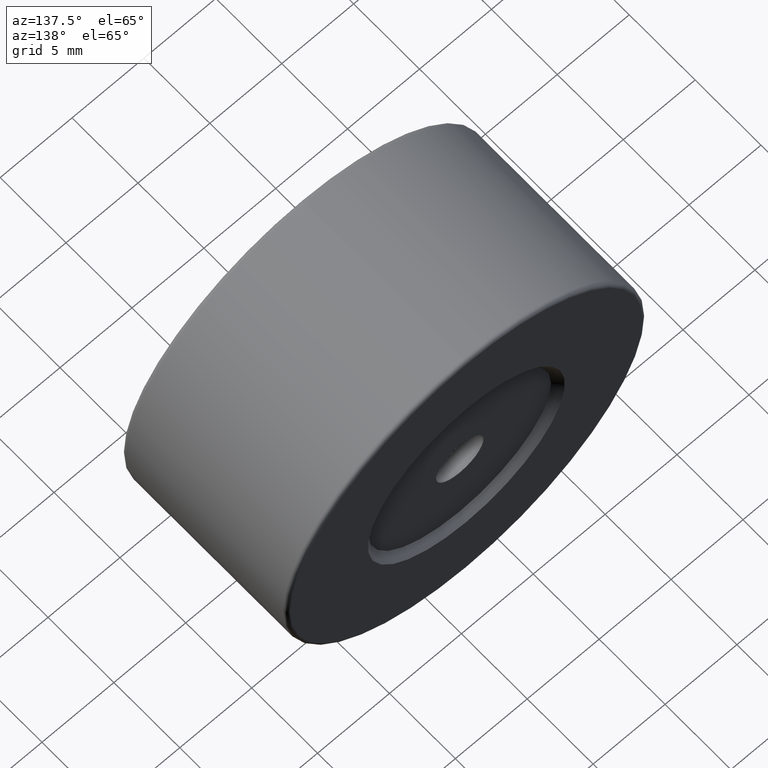
[diagram: clean part render]
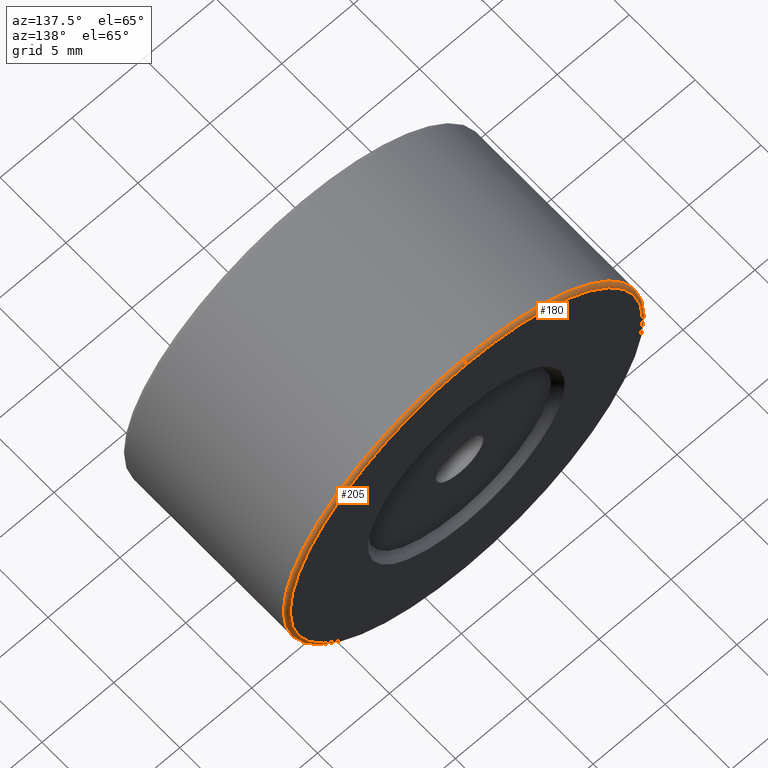
[diagram: same view with one multi-face feature highlighted, each face labeled with its STEP entity id]
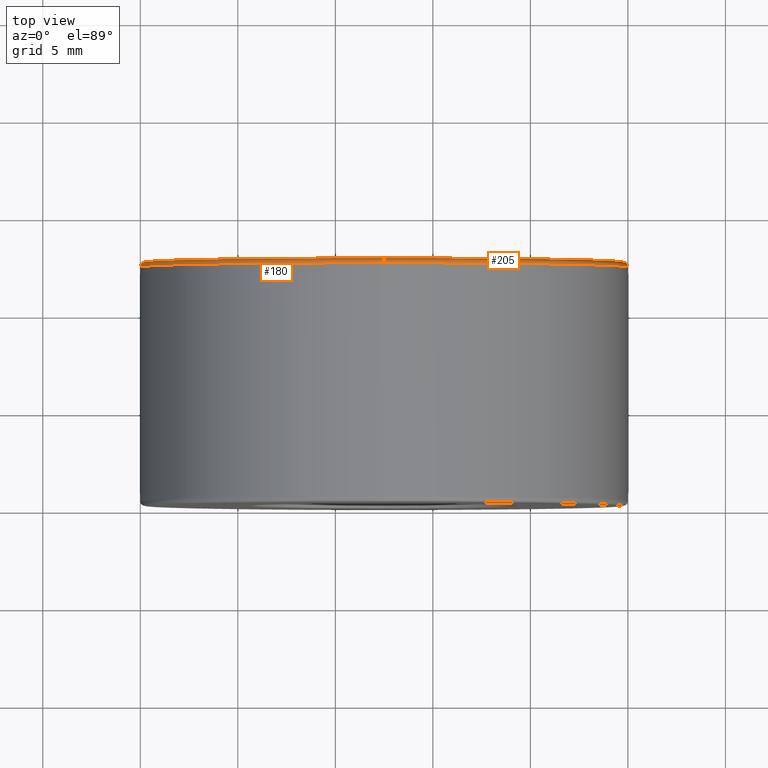
[diagram: same view with one multi-face feature highlighted, each face labeled with its STEP entity id]
A machine part, auxiliary view. The highlighted faces form ONE feature: a constant-radius fillet chain: 2 tangent blend faces with common blend radius 0.25 mm. The faces share edges in the B-rep.
A second angle (top view) of the same feature is appended — it is thin or edge-on in the first view.
Their STEP definitions:
[1] entity #205 (Torus):
#14 = DIRECTION ( 'NONE',  ( 0.0000000000000000000, 0.0000000000000000000, 1.000000000000000000 ) ) ;
#15 = EDGE_CURVE ( 'NONE', #195, #49, #157, .T. ) ;
#41 = DIRECTION ( 'NONE',  ( 0.0000000000000000000, 0.0000000000000000000, 1.000000000000000000 ) ) ;
#45 = CARTESIAN_POINT ( 'NONE',  ( -22.50520183104453409, 7.648252184769388506, 50.00000000000000000 ) ) ;
#49 = VERTEX_POINT ( 'NONE', #356 ) ;
#62 = TOROIDAL_SURFACE ( 'NONE', #470, 12.25000000000000000, 0.2500000000000000000 ) ;
#98 = DIRECTION ( 'NONE',  ( -1.000000000000000000, 0.0000000000000000000, 0.0000000000000000000 ) ) ;
#142 = CARTESIAN_POINT ( 'NONE',  ( -22.50520183104453409, 7.398252184769388506, 37.50000000000000711 ) ) ;
#146 = CARTESIAN_POINT ( 'NONE',  ( -22.50520183104453409, 7.398252184769388506, 50.00000000000000000 ) ) ;
#157 = CIRCLE ( 'NONE', #533, 12.24999999999999645 ) ;
#171 = AXIS2_PLACEMENT_3D ( 'NONE', #522, #295, #309 ) ;
#186 = CIRCLE ( 'NONE', #395, 12.49999999999999645 ) ;
#195 = VERTEX_POINT ( 'NONE', #345 ) ;
#204 = EDGE_CURVE ( 'NONE', #487, #49, #322, .T. ) ;
#205 = ADVANCED_FACE ( 'NONE', ( #441 ), #62, .T. ) ;
#274 = AXIS2_PLACEMENT_3D ( 'NONE', #368, #98, #14 ) ;
#295 = DIRECTION ( 'NONE',  ( 1.000000000000000000, -0.0000000000000000000, 1.224646799147353207E-16 ) ) ;
#304 = CIRCLE ( 'NONE', #274, 0.2500000000000002220 ) ;
#308 = CARTESIAN_POINT ( 'NONE',  ( -22.50520183104453409, 7.398252184769388506, 50.00000000000000000 ) ) ;
#309 = DIRECTION ( 'NONE',  ( 0.0000000000000000000, 0.0000000000000000000, -1.000000000000000000 ) ) ;
#322 = CIRCLE ( 'NONE', #171, 0.2500000000000002220 ) ;
#323 = DIRECTION ( 'NONE',  ( 0.0000000000000000000, 0.0000000000000000000, 1.000000000000000000 ) ) ;
#328 = DIRECTION ( 'NONE',  ( -0.0000000000000000000, -1.000000000000000000, -0.0000000000000000000 ) ) ;
#330 = CARTESIAN_POINT ( 'NONE',  ( -22.50520183104453409, 7.398252184769388506, 62.50000000000000000 ) ) ;
#345 = CARTESIAN_POINT ( 'NONE',  ( -22.50520183104453409, 7.648252184769388506, 62.25000000000000000 ) ) ;
#356 = CARTESIAN_POINT ( 'NONE',  ( -22.50520183104453409, 7.648252184769388506, 37.75000000000000711 ) ) ;
#368 = CARTESIAN_POINT ( 'NONE',  ( -22.50520183104453409, 7.398252184769388506, 62.25000000000000000 ) ) ;
#382 = ORIENTED_EDGE ( 'NONE', *, *, #204, .T. ) ;
#383 = EDGE_CURVE ( 'NONE', #393, #195, #304, .T. ) ;
#387 = EDGE_CURVE ( 'NONE', #487, #393, #186, .T. ) ;
#393 = VERTEX_POINT ( 'NONE', #330 ) ;
#395 = AXIS2_PLACEMENT_3D ( 'NONE', #146, #328, #323 ) ;
#408 = DIRECTION ( 'NONE',  ( 0.0000000000000000000, 0.0000000000000000000, 1.000000000000000000 ) ) ;
#427 = ORIENTED_EDGE ( 'NONE', *, *, #383, .F. ) ;
#441 = FACE_OUTER_BOUND ( 'NONE', #510, .T. ) ;
#449 = DIRECTION ( 'NONE',  ( 0.0000000000000000000, 1.000000000000000000, 0.0000000000000000000 ) ) ;
#470 = AXIS2_PLACEMENT_3D ( 'NONE', #308, #449, #41 ) ;
#487 = VERTEX_POINT ( 'NONE', #142 ) ;
#510 = EDGE_LOOP ( 'NONE', ( #561, #382, #512, #427 ) ) ;
#512 = ORIENTED_EDGE ( 'NONE', *, *, #15, .F. ) ;
#522 = CARTESIAN_POINT ( 'NONE',  ( -22.50520183104453409, 7.398252184769388506, 37.75000000000000711 ) ) ;
#533 = AXIS2_PLACEMENT_3D ( 'NONE', #45, #539, #408 ) ;
#539 = DIRECTION ( 'NONE',  ( 0.0000000000000000000, 1.000000000000000000, 0.0000000000000000000 ) ) ;
#561 = ORIENTED_EDGE ( 'NONE', *, *, #387, .F. ) ;
[2] entity #180 (Torus):
#14 = DIRECTION ( 'NONE',  ( 0.0000000000000000000, 0.0000000000000000000, 1.000000000000000000 ) ) ;
#49 = VERTEX_POINT ( 'NONE', #356 ) ;
#98 = DIRECTION ( 'NONE',  ( -1.000000000000000000, 0.0000000000000000000, 0.0000000000000000000 ) ) ;
#115 = CARTESIAN_POINT ( 'NONE',  ( -22.50520183104453409, 7.398252184769388506, 50.00000000000000000 ) ) ;
#122 = FACE_OUTER_BOUND ( 'NONE', #137, .T. ) ;
#123 = AXIS2_PLACEMENT_3D ( 'NONE', #225, #318, #498 ) ;
#128 = CIRCLE ( 'NONE', #208, 12.24999999999999645 ) ;
#129 = EDGE_CURVE ( 'NONE', #49, #195, #128, .T. ) ;
#137 = EDGE_LOOP ( 'NONE', ( #242, #162, #389, #463 ) ) ;
#142 = CARTESIAN_POINT ( 'NONE',  ( -22.50520183104453409, 7.398252184769388506, 37.50000000000000711 ) ) ;
#147 = TOROIDAL_SURFACE ( 'NONE', #350, 12.25000000000000000, 0.2500000000000000000 ) ;
#162 = ORIENTED_EDGE ( 'NONE', *, *, #303, .F. ) ;
#163 = DIRECTION ( 'NONE',  ( 0.0000000000000000000, 1.000000000000000000, 0.0000000000000000000 ) ) ;
#171 = AXIS2_PLACEMENT_3D ( 'NONE', #522, #295, #309 ) ;
#180 = ADVANCED_FACE ( 'NONE', ( #122 ), #147, .T. ) ;
#195 = VERTEX_POINT ( 'NONE', #345 ) ;
#204 = EDGE_CURVE ( 'NONE', #487, #49, #322, .T. ) ;
#208 = AXIS2_PLACEMENT_3D ( 'NONE', #390, #480, #220 ) ;
#220 = DIRECTION ( 'NONE',  ( 0.0000000000000000000, 0.0000000000000000000, 1.000000000000000000 ) ) ;
#225 = CARTESIAN_POINT ( 'NONE',  ( -22.50520183104453409, 7.398252184769388506, 50.00000000000000000 ) ) ;
#242 = ORIENTED_EDGE ( 'NONE', *, *, #204, .F. ) ;
#274 = AXIS2_PLACEMENT_3D ( 'NONE', #368, #98, #14 ) ;
#291 = DIRECTION ( 'NONE',  ( 0.0000000000000000000, 0.0000000000000000000, 1.000000000000000000 ) ) ;
#295 = DIRECTION ( 'NONE',  ( 1.000000000000000000, -0.0000000000000000000, 1.224646799147353207E-16 ) ) ;
#303 = EDGE_CURVE ( 'NONE', #393, #487, #378, .T. ) ;
#304 = CIRCLE ( 'NONE', #274, 0.2500000000000002220 ) ;
#309 = DIRECTION ( 'NONE',  ( 0.0000000000000000000, 0.0000000000000000000, -1.000000000000000000 ) ) ;
#318 = DIRECTION ( 'NONE',  ( -0.0000000000000000000, -1.000000000000000000, -0.0000000000000000000 ) ) ;
#322 = CIRCLE ( 'NONE', #171, 0.2500000000000002220 ) ;
#330 = CARTESIAN_POINT ( 'NONE',  ( -22.50520183104453409, 7.398252184769388506, 62.50000000000000000 ) ) ;
#345 = CARTESIAN_POINT ( 'NONE',  ( -22.50520183104453409, 7.648252184769388506, 62.25000000000000000 ) ) ;
#350 = AXIS2_PLACEMENT_3D ( 'NONE', #115, #163, #291 ) ;
#356 = CARTESIAN_POINT ( 'NONE',  ( -22.50520183104453409, 7.648252184769388506, 37.75000000000000711 ) ) ;
#368 = CARTESIAN_POINT ( 'NONE',  ( -22.50520183104453409, 7.398252184769388506, 62.25000000000000000 ) ) ;
#378 = CIRCLE ( 'NONE', #123, 12.49999999999999645 ) ;
#383 = EDGE_CURVE ( 'NONE', #393, #195, #304, .T. ) ;
#389 = ORIENTED_EDGE ( 'NONE', *, *, #383, .T. ) ;
#390 = CARTESIAN_POINT ( 'NONE',  ( -22.50520183104453409, 7.648252184769388506, 50.00000000000000000 ) ) ;
#393 = VERTEX_POINT ( 'NONE', #330 ) ;
#463 = ORIENTED_EDGE ( 'NONE', *, *, #129, .F. ) ;
#480 = DIRECTION ( 'NONE',  ( 0.0000000000000000000, 1.000000000000000000, 0.0000000000000000000 ) ) ;
#487 = VERTEX_POINT ( 'NONE', #142 ) ;
#498 = DIRECTION ( 'NONE',  ( 0.0000000000000000000, 0.0000000000000000000, 1.000000000000000000 ) ) ;
#522 = CARTESIAN_POINT ( 'NONE',  ( -22.50520183104453409, 7.398252184769388506, 37.75000000000000711 ) ) ;